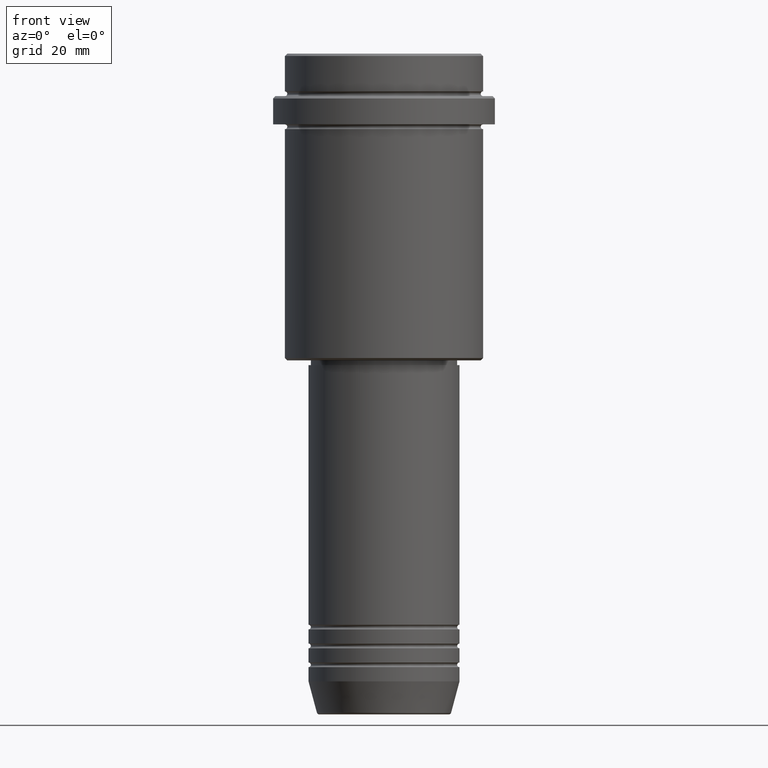
[diagram: clean part render]
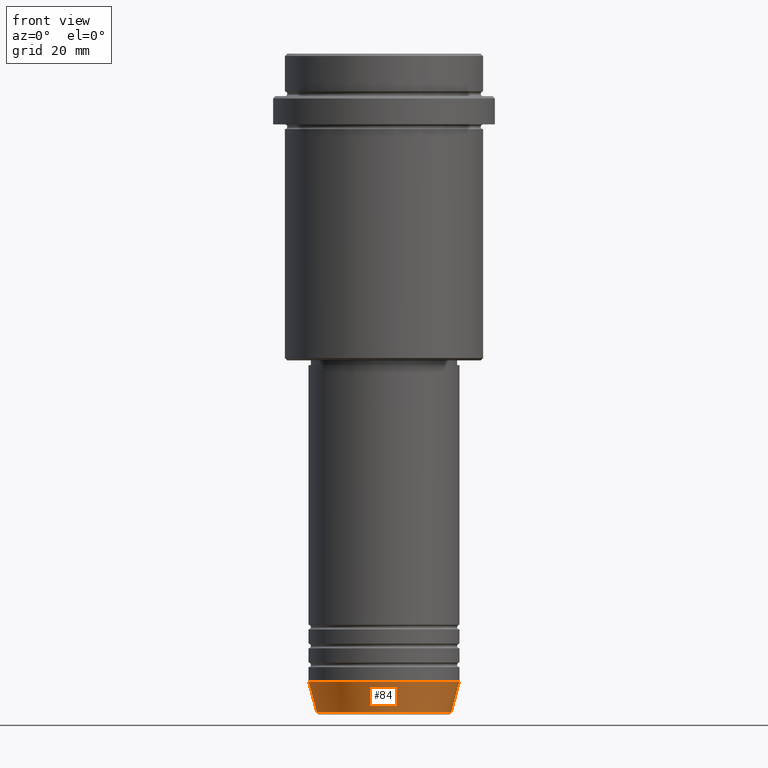
[diagram: same view with one face highlighted and labeled with its STEP entity id]
A machine part, front view. The second image highlights one B-rep face of the part: STEP entity #84.
In plain terms, the highlighted conical surface has half-angle 15 deg.
Its self-contained STEP definition (entity closure, byte-faithful):
#13 = CARTESIAN_POINT ( 'NONE',  ( 0.000000000000000000, 0.000000000000000000, -133.0000000000000000 ) ) ;
#84 = ADVANCED_FACE ( 'NONE', ( #557 ), #1068, .T. ) ;
#103 = DIRECTION ( 'NONE',  ( -0.2588190451025213501, 3.169619151431772337E-17, 0.9659258262890680902 ) ) ;
#128 = LINE ( 'NONE', #1410, #1122 ) ;
#135 = CIRCLE ( 'NONE', #660, 14.22365507213718772 ) ;
#189 = DIRECTION ( 'NONE',  ( 1.000000000000000000, 0.000000000000000000, 0.000000000000000000 ) ) ;
#200 = EDGE_CURVE ( 'NONE', #317, #1359, #135, .T. ) ;
#214 = CARTESIAN_POINT ( 'NONE',  ( 14.22365507213718772, 0.000000000000000000, -139.6294095225512706 ) ) ;
#241 = DIRECTION ( 'NONE',  ( 1.000000000000000000, 0.000000000000000000, 0.000000000000000000 ) ) ;
#317 = VERTEX_POINT ( 'NONE', #1273 ) ;
#386 = EDGE_CURVE ( 'NONE', #1055, #698, #1411, .T. ) ;
#474 = AXIS2_PLACEMENT_3D ( 'NONE', #13, #667, #241 ) ;
#503 = VECTOR ( 'NONE', #103, 1000.000000000000000 ) ;
#534 = ORIENTED_EDGE ( 'NONE', *, *, #200, .T. ) ;
#557 = FACE_OUTER_BOUND ( 'NONE', #1382, .T. ) ;
#585 = ORIENTED_EDGE ( 'NONE', *, *, #386, .F. ) ;
#587 = CARTESIAN_POINT ( 'NONE',  ( 0.000000000000000000, 0.000000000000000000, -139.6294095225512706 ) ) ;
#636 = AXIS2_PLACEMENT_3D ( 'NONE', #1179, #748, #189 ) ;
#646 = LINE ( 'NONE', #1321, #503 ) ;
#660 = AXIS2_PLACEMENT_3D ( 'NONE', #587, #789, #1233 ) ;
#663 = CARTESIAN_POINT ( 'NONE',  ( -16.00000000000000000, 1.959434878635765131E-15, -133.0000000000000000 ) ) ;
#667 = DIRECTION ( 'NONE',  ( -0.000000000000000000, -0.000000000000000000, 1.000000000000000000 ) ) ;
#668 = CARTESIAN_POINT ( 'NONE',  ( 16.00000000000000000, 0.000000000000000000, -133.0000000000000000 ) ) ;
#698 = VERTEX_POINT ( 'NONE', #668 ) ;
#724 = EDGE_CURVE ( 'NONE', #317, #1055, #646, .T. ) ;
#748 = DIRECTION ( 'NONE',  ( -0.000000000000000000, -0.000000000000000000, 1.000000000000000000 ) ) ;
#771 = ORIENTED_EDGE ( 'NONE', *, *, #724, .F. ) ;
#789 = DIRECTION ( 'NONE',  ( -0.000000000000000000, -0.000000000000000000, 1.000000000000000000 ) ) ;
#877 = DIRECTION ( 'NONE',  ( 0.2588190451025213501, 0.000000000000000000, 0.9659258262890680902 ) ) ;
#1017 = EDGE_CURVE ( 'NONE', #1359, #698, #128, .T. ) ;
#1038 = ORIENTED_EDGE ( 'NONE', *, *, #1017, .T. ) ;
#1055 = VERTEX_POINT ( 'NONE', #663 ) ;
#1068 = CONICAL_SURFACE ( 'NONE', #474, 16.00000000000000000, 0.2617993877991500740 ) ;
#1122 = VECTOR ( 'NONE', #877, 1000.000000000000000 ) ;
#1179 = CARTESIAN_POINT ( 'NONE',  ( 0.000000000000000000, 0.000000000000000000, -133.0000000000000000 ) ) ;
#1233 = DIRECTION ( 'NONE',  ( 1.000000000000000000, 0.000000000000000000, 0.000000000000000000 ) ) ;
#1273 = CARTESIAN_POINT ( 'NONE',  ( -14.22365507213718772, 1.850665122131323337E-15, -139.6294095225512706 ) ) ;
#1321 = CARTESIAN_POINT ( 'NONE',  ( -16.00000000000000000, 1.959434878635765131E-15, -133.0000000000000000 ) ) ;
#1359 = VERTEX_POINT ( 'NONE', #214 ) ;
#1382 = EDGE_LOOP ( 'NONE', ( #771, #534, #1038, #585 ) ) ;
#1410 = CARTESIAN_POINT ( 'NONE',  ( 16.00000000000000000, 0.000000000000000000, -133.0000000000000000 ) ) ;
#1411 = CIRCLE ( 'NONE', #636, 16.00000000000000000 ) ;